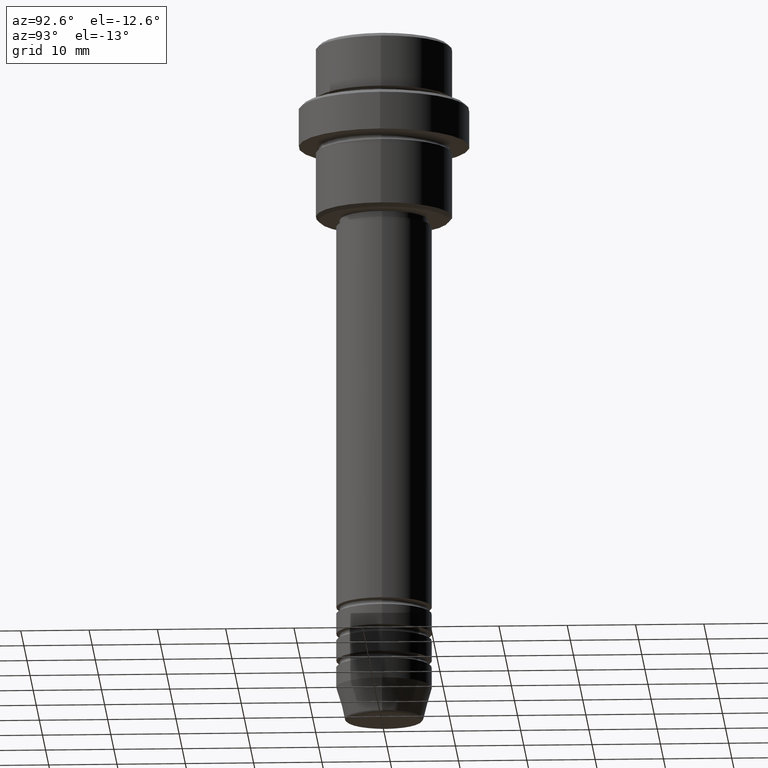
[diagram: clean part render]
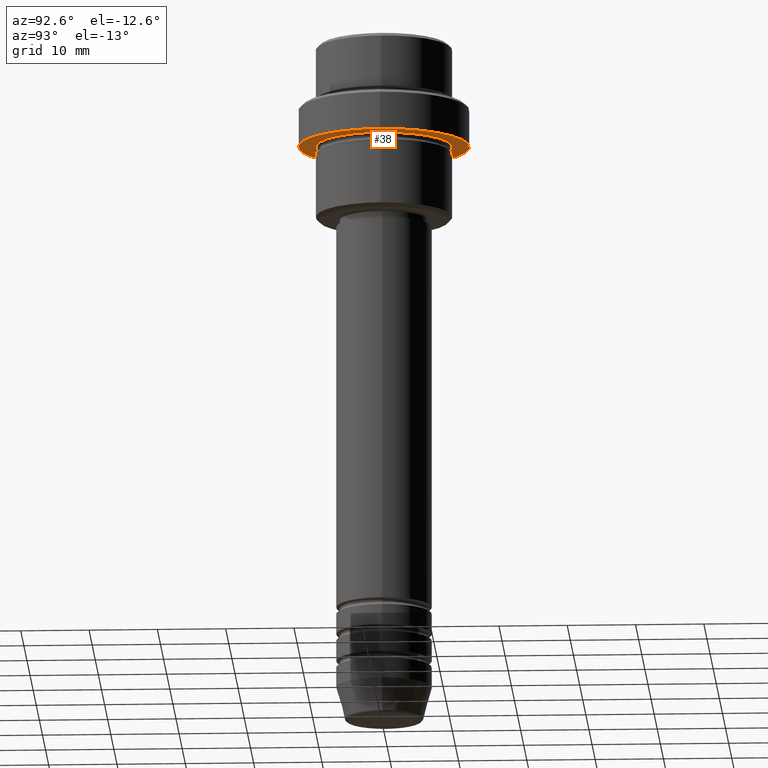
[diagram: same view with one face highlighted and labeled with its STEP entity id]
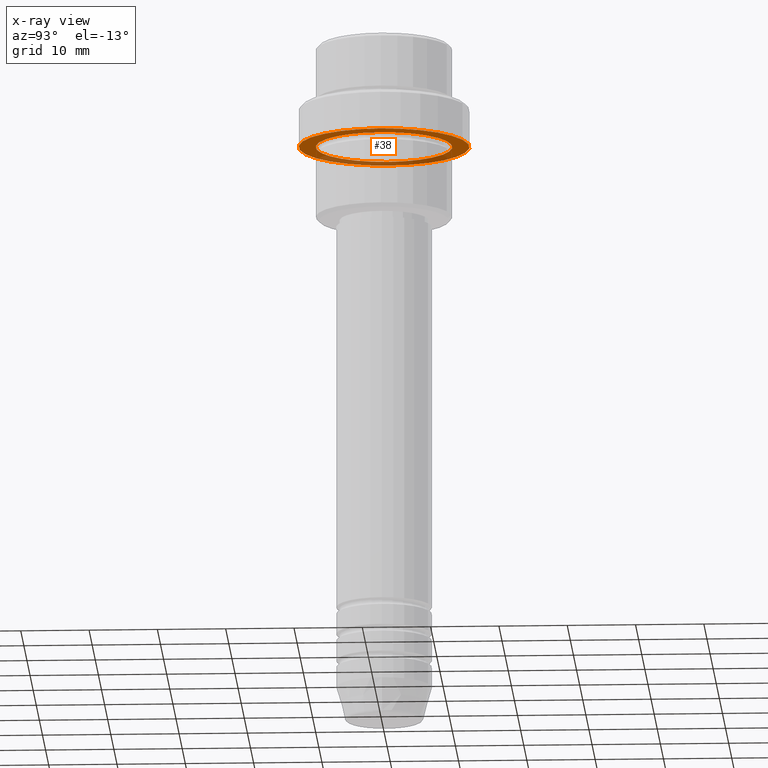
[diagram: x-ray of the same camera — body ghosted, the highlighted face saturated]
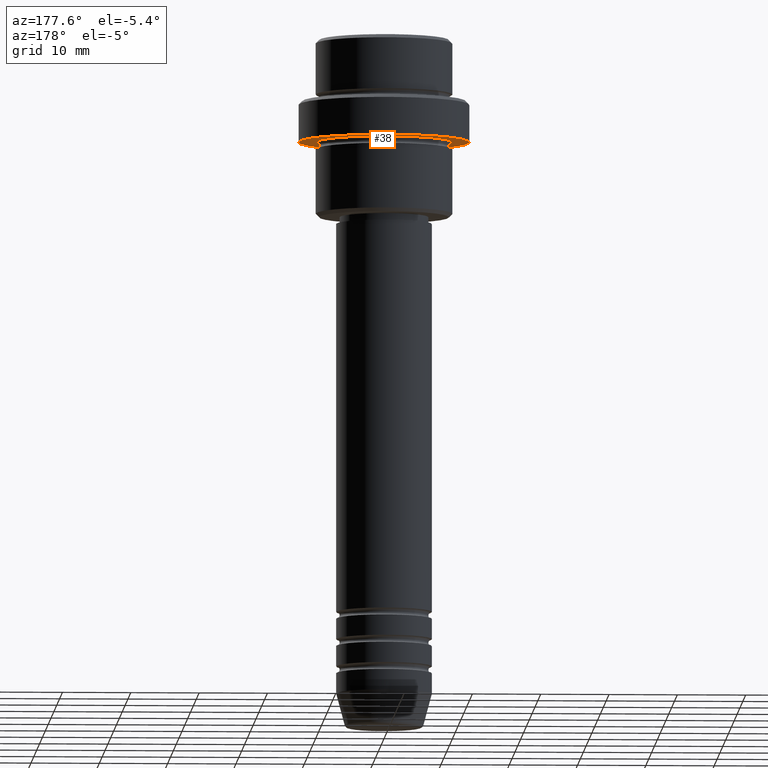
[diagram: same view with one face highlighted and labeled with its STEP entity id]
A machine part, auxiliary view. The second image highlights one B-rep face of the part: STEP entity #38.
The next image is the same camera in x-ray: the body ghosted, the highlighted face saturated — about 30% of this face is hidden behind the body in this view.
A second angle (auxiliary view) of the same face is appended — the face is thin or edge-on in the first view.
In plain terms, the highlighted planar face has unit normal (0, 0, -1).
Its self-contained STEP definition (entity closure, byte-faithful):
#12 = CARTESIAN_POINT ( 'NONE',  ( 0.000000000000000000, 12.50000000000000000, -15.00000000000000000 ) ) ;
#18 = CARTESIAN_POINT ( 'NONE',  ( 0.000000000000000000, 0.000000000000000000, -15.00000000000000178 ) ) ;
#21 = FACE_BOUND ( 'NONE', #1246, .T. ) ;
#38 = ADVANCED_FACE ( 'NONE', ( #21, #888 ), #1000, .T. ) ;
#72 = CIRCLE ( 'NONE', #578, 12.50000000000000000 ) ;
#119 = CIRCLE ( 'NONE', #413, 9.999999999999994671 ) ;
#165 = DIRECTION ( 'NONE',  ( -0.000000000000000000, -0.000000000000000000, 1.000000000000000000 ) ) ;
#272 = CARTESIAN_POINT ( 'NONE',  ( 0.000000000000000000, 0.000000000000000000, -15.00000000000000000 ) ) ;
#321 = CARTESIAN_POINT ( 'NONE',  ( 0.000000000000000000, 0.000000000000000000, -15.00000000000000000 ) ) ;
#340 = DIRECTION ( 'NONE',  ( 1.000000000000000000, 0.000000000000000000, 0.000000000000000000 ) ) ;
#346 = EDGE_LOOP ( 'NONE', ( #1121, #1235 ) ) ;
#368 = EDGE_CURVE ( 'NONE', #1211, #559, #1285, .T. ) ;
#413 = AXIS2_PLACEMENT_3D ( 'NONE', #272, #1013, #1030 ) ;
#434 = CARTESIAN_POINT ( 'NONE',  ( -12.50000000000000000, 1.530808498934191521E-15, -15.00000000000000178 ) ) ;
#439 = EDGE_CURVE ( 'NONE', #582, #459, #119, .T. ) ;
#459 = VERTEX_POINT ( 'NONE', #1044 ) ;
#559 = VERTEX_POINT ( 'NONE', #835 ) ;
#578 = AXIS2_PLACEMENT_3D ( 'NONE', #1153, #165, #945 ) ;
#582 = VERTEX_POINT ( 'NONE', #1073 ) ;
#635 = ORIENTED_EDGE ( 'NONE', *, *, #439, .T. ) ;
#662 = EDGE_CURVE ( 'NONE', #559, #1211, #72, .T. ) ;
#670 = AXIS2_PLACEMENT_3D ( 'NONE', #12, #897, #1229 ) ;
#835 = CARTESIAN_POINT ( 'NONE',  ( 12.50000000000000000, 0.000000000000000000, -15.00000000000000178 ) ) ;
#844 = AXIS2_PLACEMENT_3D ( 'NONE', #321, #1092, #1205 ) ;
#860 = ORIENTED_EDGE ( 'NONE', *, *, #1234, .T. ) ;
#888 = FACE_OUTER_BOUND ( 'NONE', #346, .T. ) ;
#897 = DIRECTION ( 'NONE',  ( 0.000000000000000000, 0.000000000000000000, -1.000000000000000000 ) ) ;
#945 = DIRECTION ( 'NONE',  ( 1.000000000000000000, 0.000000000000000000, 0.000000000000000000 ) ) ;
#1000 = PLANE ( 'NONE',  #670 ) ;
#1013 = DIRECTION ( 'NONE',  ( -0.000000000000000000, -0.000000000000000000, 1.000000000000000000 ) ) ;
#1030 = DIRECTION ( 'NONE',  ( -1.000000000000000000, 0.000000000000000000, 0.000000000000000000 ) ) ;
#1044 = CARTESIAN_POINT ( 'NONE',  ( -9.999999999999994671, 0.000000000000000000, -15.00000000000000000 ) ) ;
#1073 = CARTESIAN_POINT ( 'NONE',  ( 9.999999999999994671, 1.224646799147352665E-15, -15.00000000000000000 ) ) ;
#1092 = DIRECTION ( 'NONE',  ( -0.000000000000000000, -0.000000000000000000, 1.000000000000000000 ) ) ;
#1121 = ORIENTED_EDGE ( 'NONE', *, *, #662, .F. ) ;
#1153 = CARTESIAN_POINT ( 'NONE',  ( 0.000000000000000000, 0.000000000000000000, -15.00000000000000178 ) ) ;
#1205 = DIRECTION ( 'NONE',  ( -1.000000000000000000, 0.000000000000000000, 0.000000000000000000 ) ) ;
#1206 = CIRCLE ( 'NONE', #844, 9.999999999999994671 ) ;
#1211 = VERTEX_POINT ( 'NONE', #434 ) ;
#1229 = DIRECTION ( 'NONE',  ( -1.000000000000000000, 0.000000000000000000, -0.000000000000000000 ) ) ;
#1234 = EDGE_CURVE ( 'NONE', #459, #582, #1206, .T. ) ;
#1235 = ORIENTED_EDGE ( 'NONE', *, *, #368, .F. ) ;
#1246 = EDGE_LOOP ( 'NONE', ( #860, #635 ) ) ;
#1285 = CIRCLE ( 'NONE', #1336, 12.50000000000000000 ) ;
#1320 = DIRECTION ( 'NONE',  ( -0.000000000000000000, -0.000000000000000000, 1.000000000000000000 ) ) ;
#1336 = AXIS2_PLACEMENT_3D ( 'NONE', #18, #1320, #340 ) ;